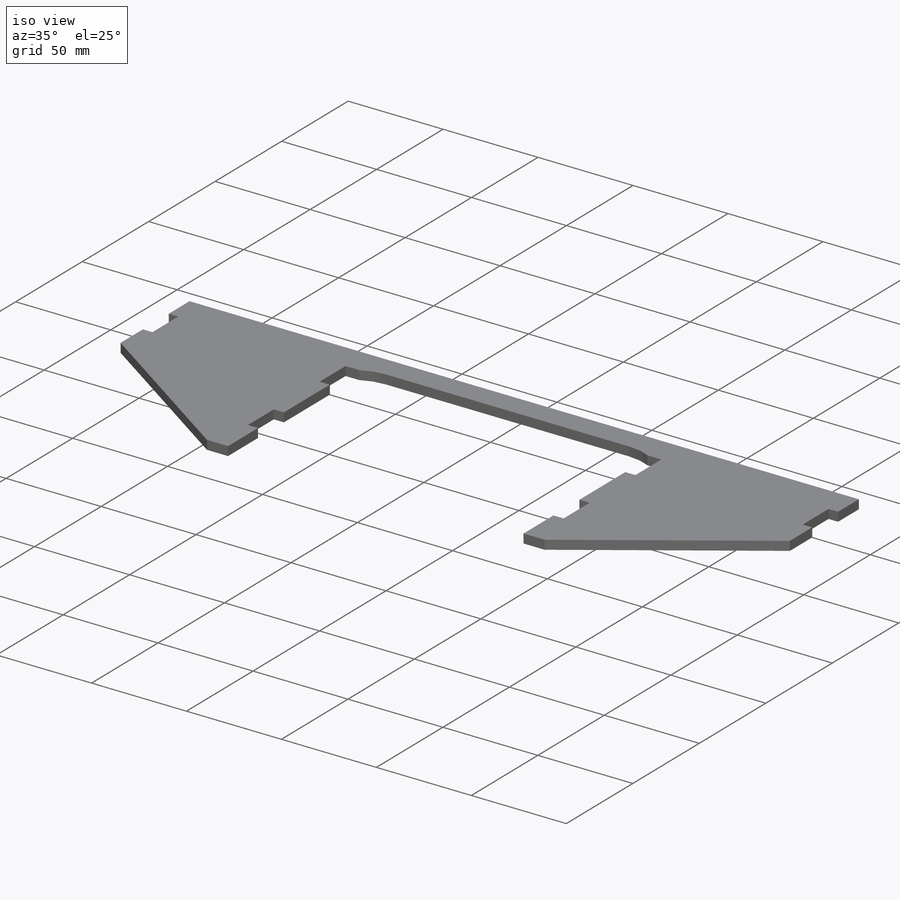
[diagram: iso view]
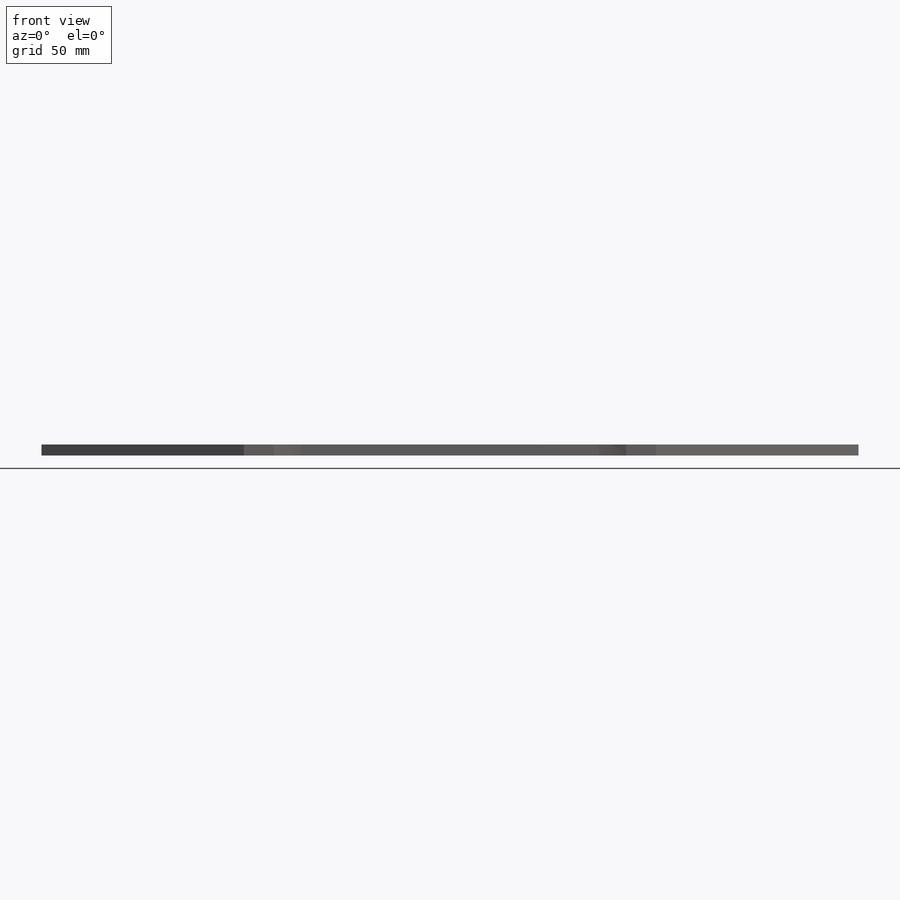
[diagram: front view]
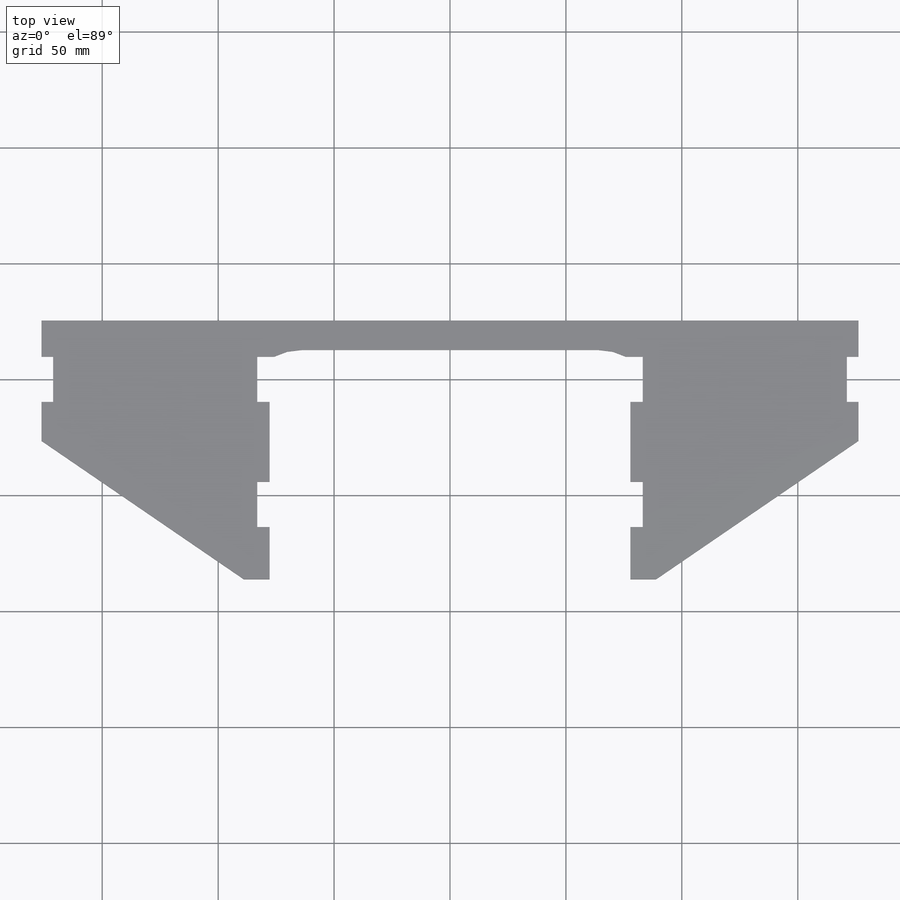
[diagram: top view]
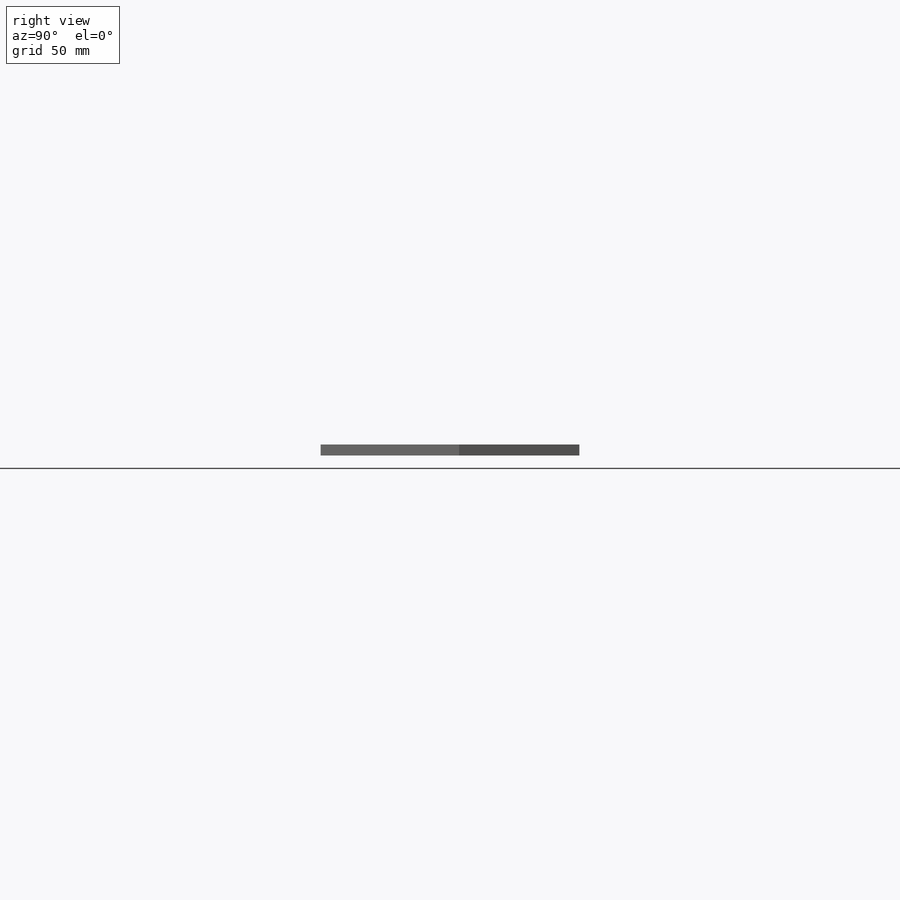
[diagram: right view]
SOLIDWORKS PART (.sldprt)
format: sldprt  version: not decoded by parser v0  size: 364,544 bytes
history: native  units: mm
features: sketch x7, cut_extrude x5, extrude x2, material x1 (+13 scaffold rows collapsed)
feature tree (28):
  scaffold x13  (default folders/planes/origin — collapsed)
  material  "Plain Carbon Steel"
  sketch  "Sketch1"  dims[D1=177.8mm D2=25.4mm]
  extrude  "Boss-Extrude1"  Depth=4.7625mm
  sketch  "Sketch2"
  extrude  "Boss-Extrude2"  Depth=4.7625mm
  sketch  "Sketch3"  dims[c1.D1=~8.367503mm c1.D2=~4.310532mm c2.D1=~18.963321mm c2.D2=6.35mm c3.D1=~18.963321mm c3.D2=6.35mm c4.D1=~18.963321mm c4.D2=6.35mm c5.D1=~18.963321mm c5.D2=6.35mm c6.D1=~18.963321mm c6.D2=6.35mm c7.D1=~18.963321mm c7.D2=6.35mm c8.D1=0.254mm]
  cut_extrude  "Cut-Extrude1"  [1 undecoded]
  sketch  "Sketch4"  dims[D2=1.5875mm D3=1.5875mm D4=1.5875mm D5=1.5875mm D1=0.0mm]
  cut_extrude  "Cut-Extrude2"  [1 undecoded]
  sketch  "Sketch5"  dims[c1.D2=25.4mm c1.D1=~31.105446mm c2.D2=~143.665954mm c2.D1=12.7mm]
  cut_extrude  "Cut-Extrude3"  [1 undecoded]
  sketch  "Sketch6"  dims[c1.D1=~19.132963mm c1.D2=~12.779616mm c2.D1=~26.479714mm c2.D2=~8.648233mm c3.D1=~25.224952mm c3.D2=~18.471411mm c4.D1=~24.034356mm c4.D2=~13.755237mm c5.D1=166.243mm]
  cut_extrude  "Cut-Extrude4"  [1 undecoded]
  sketch  "Sketch7"  dims[c1.D1=~4.213256mm c1.D2=~134.332431mm c2.D1=~2.097078mm c2.D2=~4.554017mm]
  cut_extrude  "Cut-Extrude5"  [1 undecoded]
decode coverage: 8 of 14 modeling features carry decoded parameters
note: ~ marks probable driven/reference dimensions
note: 5 parameter values undecoded
summary: no parameter record found for 5 features
note: suppression state not decoded; provenance and decode notes live in map.json
